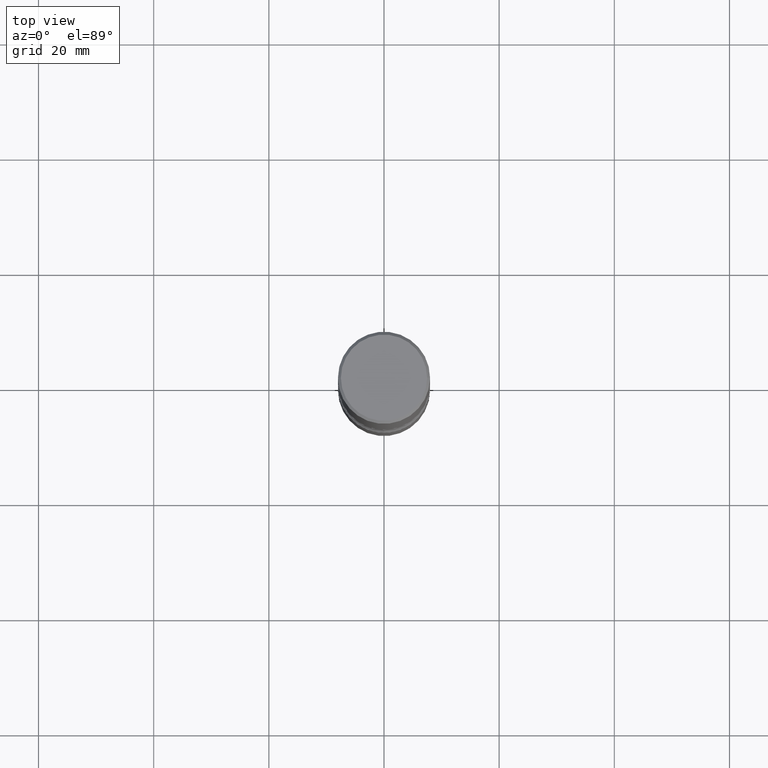
[diagram: clean part render]
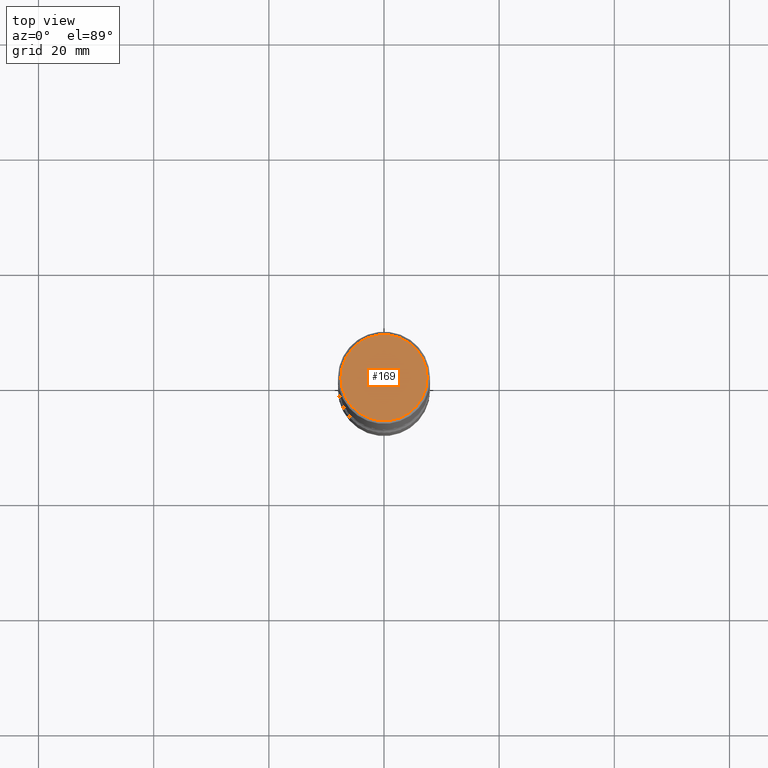
[diagram: same view with one face highlighted and labeled with its STEP entity id]
A machine part, top view. The second image highlights one B-rep face of the part: STEP entity #169.
In plain terms, the highlighted planar face has unit normal (0, -0, -1).
Its self-contained STEP definition (entity closure, byte-faithful):
#17 = ORIENTED_EDGE ( 'NONE', *, *, #526, .T. ) ;
#70 = CARTESIAN_POINT ( 'NONE',  ( 2.059624841783563274E-15, 0.2949499999999998789, -1.023409652156634744E-15 ) ) ;
#74 = FACE_OUTER_BOUND ( 'NONE', #248, .T. ) ;
#76 = ORIENTED_EDGE ( 'NONE', *, *, #113, .T. ) ;
#103 = CIRCLE ( 'NONE', #380, 0.2949499999999998789 ) ;
#113 = EDGE_CURVE ( 'NONE', #510, #176, #103, .T. ) ;
#115 = CIRCLE ( 'NONE', #354, 0.2949499999999998789 ) ;
#116 = DIRECTION ( 'NONE',  ( -2.445468806185136597E-29, 3.491481338843145583E-15, 1.000000000000000000 ) ) ;
#169 = ADVANCED_FACE ( 'NONE', ( #74 ), #498, .F. ) ;
#176 = VERTEX_POINT ( 'NONE', #559 ) ;
#239 = DIRECTION ( 'NONE',  ( 2.438088387897960049E-29, -3.491481338843145188E-15, -1.000000000000000000 ) ) ;
#245 = DIRECTION ( 'NONE',  ( -1.000000000000000000, 6.982962677686265922E-15, -4.876176775795935793E-29 ) ) ;
#248 = EDGE_LOOP ( 'NONE', ( #76, #17 ) ) ;
#270 = CARTESIAN_POINT ( 'NONE',  ( -3.131554243005659264E-46, 4.471029511141341874E-32, 1.280553747030123384E-17 ) ) ;
#280 = DIRECTION ( 'NONE',  ( 1.000000000000000000, -6.982962677686267499E-15, 4.876053491004736589E-29 ) ) ;
#287 = CARTESIAN_POINT ( 'NONE',  ( -3.131554243005659264E-46, 4.471029511141341874E-32, 1.280553747030123384E-17 ) ) ;
#317 = AXIS2_PLACEMENT_3D ( 'NONE', #70, #239, #245 ) ;
#354 = AXIS2_PLACEMENT_3D ( 'NONE', #270, #446, #366 ) ;
#363 = CARTESIAN_POINT ( 'NONE',  ( -0.2949499999999998789, 2.094539655171994924E-15, 1.280553747028670770E-17 ) ) ;
#366 = DIRECTION ( 'NONE',  ( 1.000000000000000000, -6.982962677686267499E-15, 4.876053491004736589E-29 ) ) ;
#380 = AXIS2_PLACEMENT_3D ( 'NONE', #287, #116, #280 ) ;
#446 = DIRECTION ( 'NONE',  ( -2.445468806185136597E-29, 3.491481338843145583E-15, 1.000000000000000000 ) ) ;
#498 = PLANE ( 'NONE',  #317 ) ;
#510 = VERTEX_POINT ( 'NONE', #363 ) ;
#526 = EDGE_CURVE ( 'NONE', #176, #510, #115, .T. ) ;
#559 = CARTESIAN_POINT ( 'NONE',  ( 0.2949499999999998789, -2.127023677808859286E-15, 1.280553747031587399E-17 ) ) ;